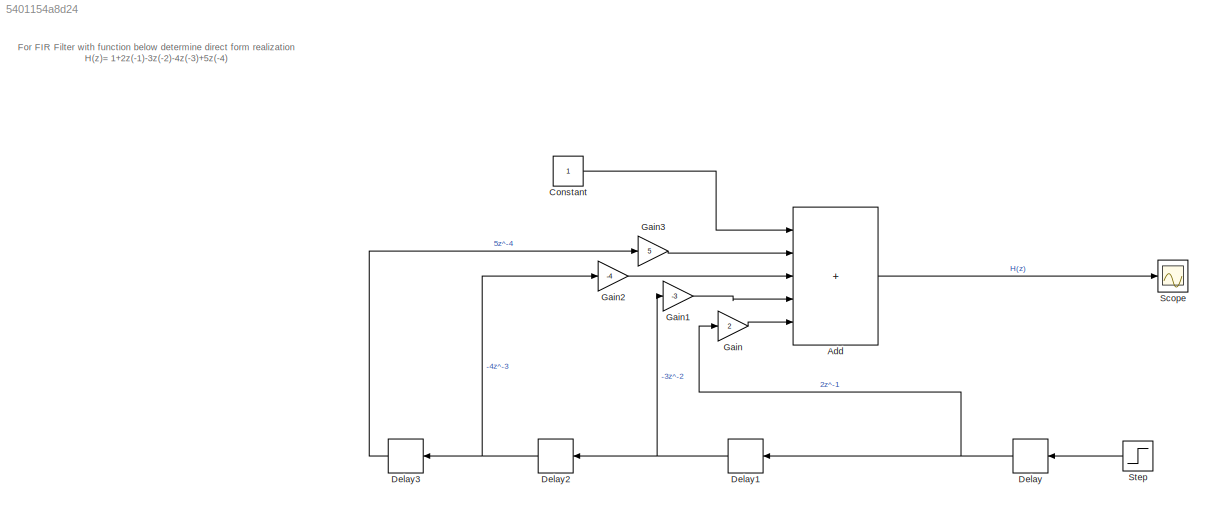
MODEL slx_5401154a8d24
KIND model
CONFIG AbsTol = auto
CONFIG EnableMultiTasking = off
CONFIG FixedStep = auto
CONFIG MaxStep = auto
CONFIG MinStep = auto
CONFIG RelTol = 1e-3
CONFIG SampleTimeConstraint = Unconstrained
CONFIG SolverName = VariableStepAuto
CONFIG StartTime = 0.0
CONFIG StopTime = 10.0
BLOCK [Sum] Add
  IconShape = rectangular
  Inputs = +++++
  Ports = [5, 1]
BLOCK [Constant] Constant
BLOCK [Delay] Delay
  DelayLength = 1
  InputPortMap = u0
  NameLocation = top
  Ports = [1, 1]
BLOCK [Delay] Delay1
  DelayLength = 1
  InputPortMap = u0
  NameLocation = top
  Ports = [1, 1]
BLOCK [Delay] Delay2
  DelayLength = 1
  InputPortMap = u0
  NameLocation = top
  Ports = [1, 1]
BLOCK [Delay] Delay3
  DelayLength = 1
  InputPortMap = u0
  NameLocation = top
  Ports = [1, 1]
BLOCK [Gain] Gain
  Gain = 2
BLOCK [Gain] Gain1
  Gain = -3
BLOCK [Gain] Gain2
  Gain = -4
BLOCK [Gain] Gain3
  Gain = 5
BLOCK [Scope] Scope
  Floating = off
  NumInputPorts = 1
  Ports = [1]
  ScopeSpecificationString = Simulink.scopes.TimeScopeBlockCfg('CurrentConfiguration', extmgr.ConfigurationSet(extmgr.Configuration('Core','General UI',true),extmgr.Configuration('Core','Source UI',true),extmgr.Configuration('Sources','WiredSimulink',true),extmgr.Configuration('Visuals','Time Domain',true,'SerializedDisplays',{struct('MinYLimReal','-4.875','MaxYLimReal','3.875','YLabelReal','','MinYLimMag','0.00000','MaxYLimM...<+1337ch>
BLOCK [Step] Step
  NameLocation = top
  SampleTime = 0
ANNOTATION (root): For FIR Filter with function below determine direct form realization H(z)= 1+2z(-1)-3z(-2)-4z(-3)+5z(-4)
LINE Add:1 -> Scope:1
LINE Constant:1 -> Add:1
NET Delay1:1 -> Delay2:1, Gain1:1
NET Delay2:1 -> Delay3:1, Gain2:1
LINE Delay3:1 -> Gain3:1
NET Delay:1 -> Delay1:1, Gain:1
LINE Gain1:1 -> Add:4
LINE Gain2:1 -> Add:3
LINE Gain3:1 -> Add:2
LINE Gain:1 -> Add:5
LINE Step:1 -> Delay:1
note: NET lines group one-source signal fan-out (src -> all destinations, sorted); 1:1 wires keep LINE
